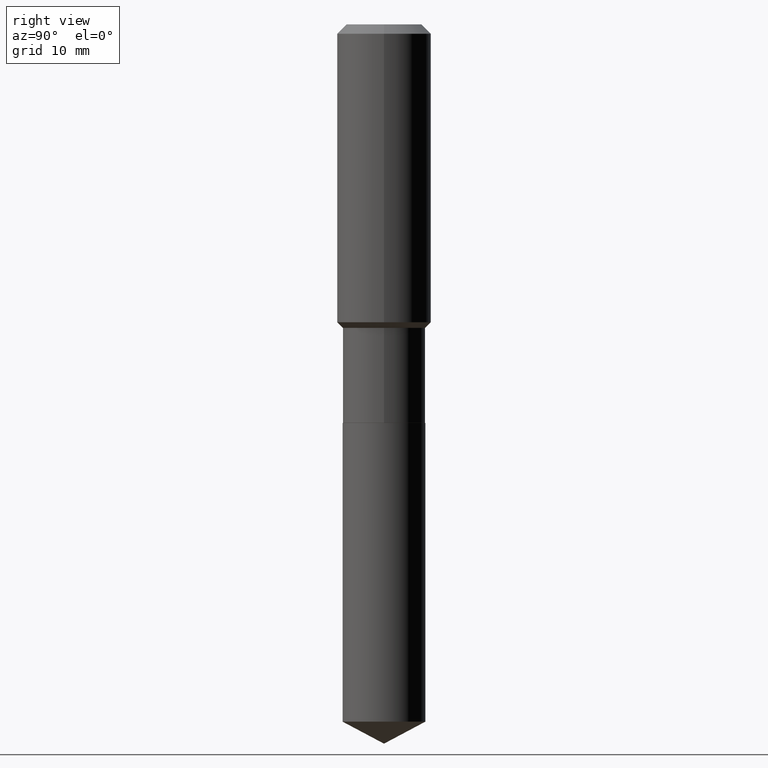
[diagram: clean part render]
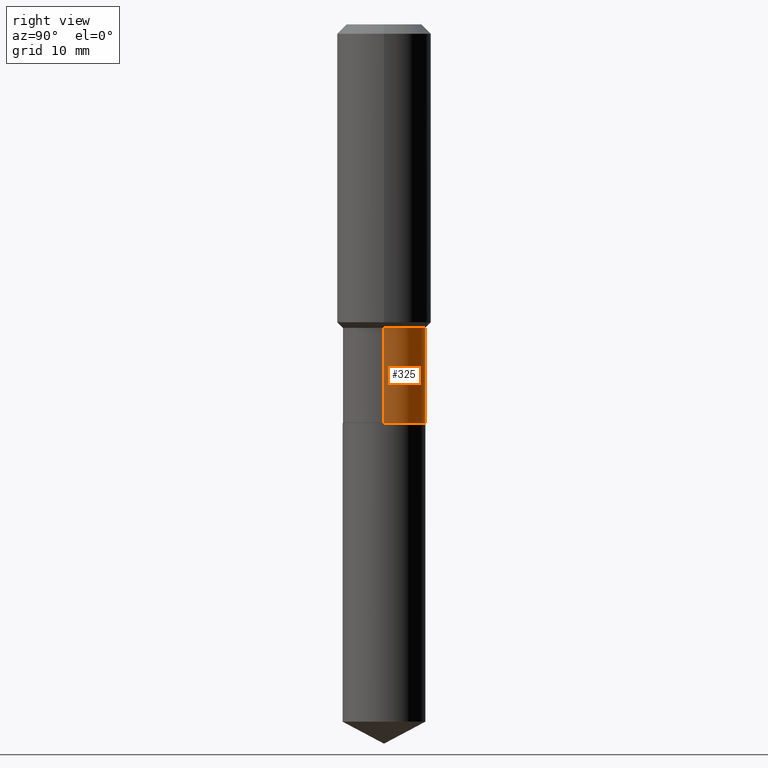
[diagram: same view with one face highlighted and labeled with its STEP entity id]
A machine part, right view. The second image highlights one B-rep face of the part: STEP entity #325.
In plain terms, the highlighted cylindrical surface (partial cylindrical patch) has radius 6.1519 mm, axis along (-0, 0, 1).
Its self-contained STEP definition (entity closure, byte-faithful):
#11 = CARTESIAN_POINT ( 'NONE',  ( 0.000000000000000000, 0.000000000000000000, 0.000000000000000000 ) ) ;
#17 = AXIS2_PLACEMENT_3D ( 'NONE', #297, #461, #235 ) ;
#25 = CARTESIAN_POINT ( 'NONE',  ( 0.2421999999999999431, -7.898079936597074890E-15, -1.777700000000000502 ) ) ;
#64 = VECTOR ( 'NONE', #390, 39.37007874015748143 ) ;
#72 = CARTESIAN_POINT ( 'NONE',  ( 0.2421999999999999709, -1.691273560535613794E-15, 1.181010015097775552E-29 ) ) ;
#76 = FACE_OUTER_BOUND ( 'NONE', #288, .T. ) ;
#87 = CIRCLE ( 'NONE', #191, 0.2422000000000000264 ) ;
#94 = VERTEX_POINT ( 'NONE', #25 ) ;
#111 = VERTEX_POINT ( 'NONE', #430 ) ;
#114 = CARTESIAN_POINT ( 'NONE',  ( -0.2421999999999999709, 1.720934506010962443E-15, -1.191366078859738065E-29 ) ) ;
#125 = DIRECTION ( 'NONE',  ( -2.445468806185136597E-29, 3.491481338843145583E-15, 1.000000000000000000 ) ) ;
#183 = EDGE_CURVE ( 'NONE', #360, #94, #348, .T. ) ;
#190 = CARTESIAN_POINT ( 'NONE',  ( -0.2421999999999999431, -5.457551126650547377E-15, -1.777700000000000502 ) ) ;
#191 = AXIS2_PLACEMENT_3D ( 'NONE', #247, #125, #274 ) ;
#193 = LINE ( 'NONE', #114, #64 ) ;
#196 = DIRECTION ( 'NONE',  ( -2.445468806185136877E-29, 3.491481338843145188E-15, 1.000000000000000000 ) ) ;
#197 = CYLINDRICAL_SURFACE ( 'NONE', #355, 0.2421999999999999709 ) ;
#209 = ORIENTED_EDGE ( 'NONE', *, *, #244, .T. ) ;
#235 = DIRECTION ( 'NONE',  ( 1.000000000000000000, -6.982962677686268288E-15, 0.000000000000000000 ) ) ;
#244 = EDGE_CURVE ( 'NONE', #360, #111, #87, .T. ) ;
#247 = CARTESIAN_POINT ( 'NONE',  ( 5.708457834277965108E-29, -8.150164889261555783E-15, -2.334300000000000264 ) ) ;
#266 = DIRECTION ( 'NONE',  ( -2.445468806185136597E-29, 3.491481338843145583E-15, 1.000000000000000000 ) ) ;
#274 = DIRECTION ( 'NONE',  ( 1.000000000000000000, -6.982962677686265922E-15, 0.000000000000000000 ) ) ;
#286 = ORIENTED_EDGE ( 'NONE', *, *, #183, .F. ) ;
#288 = EDGE_LOOP ( 'NONE', ( #209, #323, #403, #286 ) ) ;
#297 = CARTESIAN_POINT ( 'NONE',  ( 4.347309896755318363E-29, -6.206806376061462280E-15, -1.777700000000000502 ) ) ;
#309 = CIRCLE ( 'NONE', #17, 0.2421999999999999431 ) ;
#311 = CARTESIAN_POINT ( 'NONE',  ( 0.2422000000000000264, -9.841438449797169972E-15, -2.334300000000000264 ) ) ;
#319 = VECTOR ( 'NONE', #196, 39.37007874015748143 ) ;
#323 = ORIENTED_EDGE ( 'NONE', *, *, #386, .T. ) ;
#325 = ADVANCED_FACE ( 'NONE', ( #76 ), #197, .T. ) ;
#348 = LINE ( 'NONE', #72, #319 ) ;
#355 = AXIS2_PLACEMENT_3D ( 'NONE', #11, #266, #458 ) ;
#360 = VERTEX_POINT ( 'NONE', #311 ) ;
#369 = EDGE_CURVE ( 'NONE', #94, #377, #309, .T. ) ;
#377 = VERTEX_POINT ( 'NONE', #190 ) ;
#386 = EDGE_CURVE ( 'NONE', #111, #377, #193, .T. ) ;
#390 = DIRECTION ( 'NONE',  ( -2.445468806185136877E-29, 3.491481338843145188E-15, 1.000000000000000000 ) ) ;
#403 = ORIENTED_EDGE ( 'NONE', *, *, #369, .F. ) ;
#430 = CARTESIAN_POINT ( 'NONE',  ( -0.2422000000000000541, -5.457551126650547377E-15, -2.334300000000000264 ) ) ;
#458 = DIRECTION ( 'NONE',  ( 1.000000000000000000, -6.982962677686267499E-15, 4.876176775795935793E-29 ) ) ;
#461 = DIRECTION ( 'NONE',  ( -2.445468806185136597E-29, 3.491481338843145583E-15, 1.000000000000000000 ) ) ;